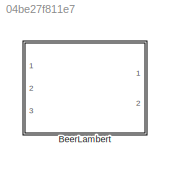
MODEL slx_04be27f811e7
KIND model
CONFIG AbsTol = auto
CONFIG EnableMultiTasking = off
CONFIG FixedStep = auto
CONFIG MaxStep = auto
CONFIG MinStep = auto
CONFIG RelTol = 1e-3
CONFIG SampleTimeConstraint = Unconstrained
CONFIG SolverName = VariableStepAuto
CONFIG StartTime = 0.0
CONFIG StopTime = 10.0
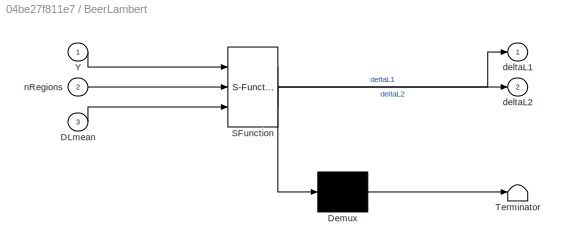
BLOCK [SubSystem] BeerLambert
  ErrorFcn = Stateflow.Translate.translate
  PermitHierarchicalResolution = ExplicitOnly
  Ports = [3, 2]
  RequestExecContextInheritance = off
  SFBlockType = MATLAB Function
  TreatAsAtomicUnit = on
BLOCK [Demux] BeerLambert/ Demux 
  Outputs = 1
  Ports = [1, 1]
BLOCK [S-Function] BeerLambert/ SFunction 
  EnableBusSupport = on
  FunctionName = sf_sfun
  PortCounts = [3 3]
  Ports = [3, 3]
  SFcnIsStateOwnerBlock = off
  SFunctionDeploymentMode = off
  Tag = Stateflow S-Function 7
BLOCK [Terminator] BeerLambert/ Terminator 
BLOCK [Inport] BeerLambert/DLmean
  Port = 3
BLOCK [Inport] BeerLambert/Y
BLOCK [Outport] BeerLambert/deltaL1
BLOCK [Outport] BeerLambert/deltaL2
  Port = 2
BLOCK [Inport] BeerLambert/nRegions
  Port = 2
CHART BeerLambert states=1 transitions=1
  STATE_LABEL 'eML_blk_kernel()'
  STATE_LABEL 'SCRIPT:\nfunction [deltaL1,deltaL2]   = MLBL(Y, nRegions, DLmean)\n\n%Molar extinction coefficients \n%Considering the wavelengths of the STak implentation, we need to use\n% 780nm and 850nm\n\n%780nm = [735.8251 1104.715];\n%850nm = [1159.306 785.8993];\ne_coefficients = [735.8251 1104.715;\n                    1159.306 785.8993];\n\n% https://mail.nmr.mgh.harvard.edu/pipermail//homer-users/2006-July/000124....<+912ch>'
CHART  states=0 transitions=0
